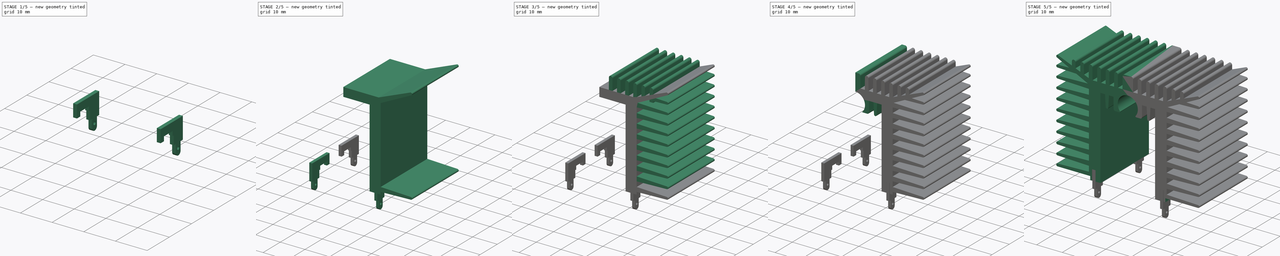
[diagram: build sequence overview — one tinted view per stage of 5, left to right]
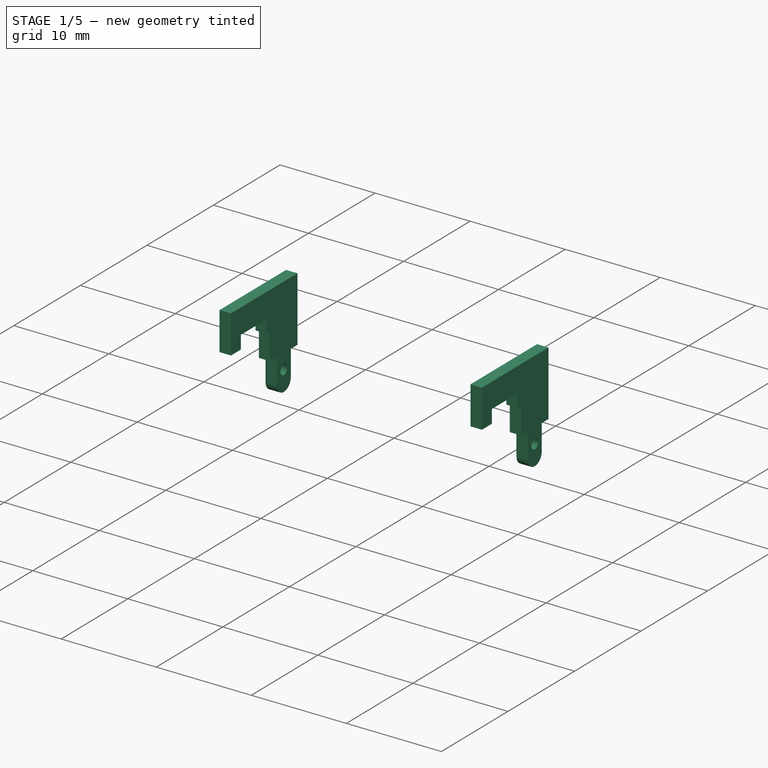
[diagram: stage 1 of 5 — iso view after this stage's code; geometry added in this stage tinted green]
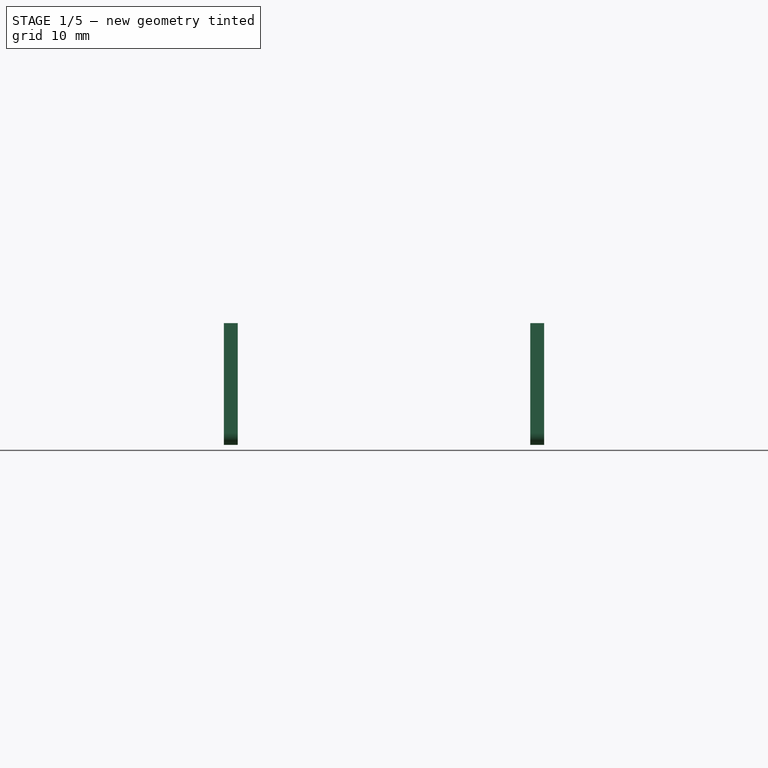
[diagram: stage 1 of 5 — front view after this stage's code; geometry added in this stage tinted green]
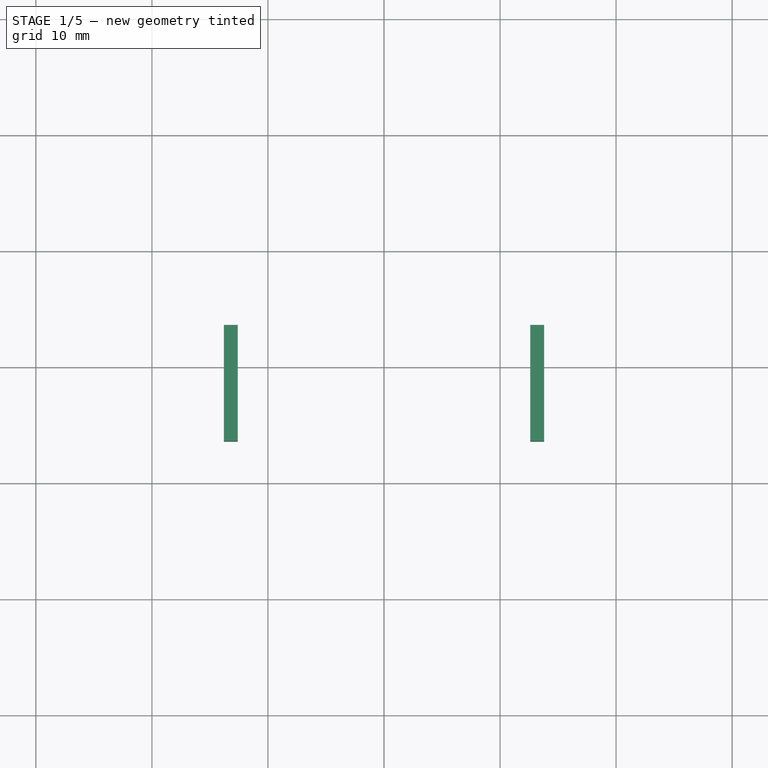
[diagram: stage 1 of 5 — top view after this stage's code; geometry added in this stage tinted green]
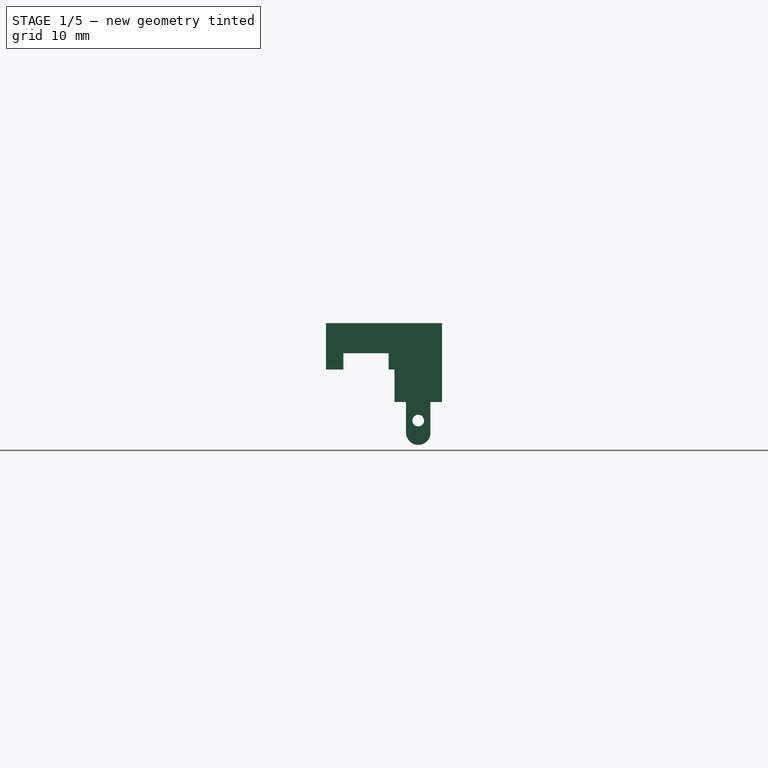
[diagram: stage 1 of 5 — right view after this stage's code; geometry added in this stage tinted green]
FCSTD DOCUMENT  (FreeCAD 1.0R38641 +468 (Git))
Label: MA-301-27E
License: All rights reserved
LicenseURL: http://en.wikipedia.org/wiki/All_rights_reserved
objects: Sketcher::SketchObject×12, PartDesign::Pad×6, PartDesign::Pocket×5, PartDesign::LinearPattern×2, PartDesign::Fillet×2, PartDesign::Body×2, Part::Mirroring×2, Part::FeaturePython×1, Part::MultiFuse×1, Part::Compound×1
note: 74 computed .brp shape members not serialized (recipe doc carries the construction recipe); baked Part::Feature solids carry a one-line shape summary decoded from their .brp

FEATURE [Sketcher::SketchObject] Sketch009
  ArcFitTolerance = 0
  AttachmentSupport = -> [YZ_Plane001]
  FullyConstrained = true
  MakeInternals = false
  MapMode = 5
  Placement = pos=(0,0,0) rot=(0.57735,0.57735,0.57735;2.0944rad)
  sketch-geometry (18):
    g0: LineSegment StartX=-1.05 StartY=-2.65 StartZ=0 EndX=-1.05 EndY=0 EndZ=0
    g1: LineSegment StartX=-1.05 StartY=0 StartZ=0 EndX=-2.05 EndY=0 EndZ=0
    g2: LineSegment StartX=-2.05 StartY=0 StartZ=0 EndX=-2.05 EndY=6.8 EndZ=0
    g3: LineSegment StartX=-2.05 StartY=6.8 StartZ=0 EndX=7.95 EndY=6.8 EndZ=0
    g4: LineSegment StartX=7.95 StartY=6.8 StartZ=0 EndX=7.95 EndY=2.8 EndZ=0
    g5: LineSegment StartX=6.45 StartY=4.2 StartZ=0 EndX=2.55 EndY=4.2 EndZ=0
    g6: LineSegment StartX=2.05 StartY=2.8 StartZ=0 EndX=2.05 EndY=0 EndZ=0
    g7: LineSegment StartX=2.05 StartY=0 StartZ=0 EndX=1.05 EndY=0 EndZ=0
    g8: LineSegment StartX=1.05 StartY=0 StartZ=0 EndX=1.05 EndY=-2.65 EndZ=0
    g9: LineSegment [constr] StartX=1.05 StartY=-2.65 StartZ=0 EndX=-1.05 EndY=-2.65 EndZ=0
    g10: LineSegment StartX=6.45 StartY=4.2 StartZ=0 EndX=6.45 EndY=2.8 EndZ=0
    g11: LineSegment StartX=6.45 StartY=2.8 StartZ=0 EndX=7.95 EndY=2.8 EndZ=0
    g12: LineSegment StartX=2.05 StartY=2.8 StartZ=0 EndX=2.55 EndY=2.8 EndZ=0
    g13: LineSegment StartX=2.55 StartY=2.8 StartZ=0 EndX=2.55 EndY=4.2 EndZ=0
    g14: ArcOfCircle CenterX=0 CenterY=-2.65 CenterZ=0 NormalX=0 NormalY=0 NormalZ=1 AngleXU=0 Radius=1.05 StartAngle=3.14159 EndAngle=6.28319
    g15: LineSegment [constr] StartX=-2.05 StartY=0 StartZ=0 EndX=-2.05 EndY=-3.7 EndZ=0
    g16: LineSegment [constr] StartX=-2.05 StartY=-3.7 StartZ=0 EndX=0 EndY=-3.7 EndZ=0
    g17: LineSegment [constr] StartX=2.55 StartY=2.8 StartZ=0 EndX=6.45 EndY=2.8 EndZ=0
  constraints (48):
    c: PointOnObject(g0,g-1)
    c: Vertical(g0)
    c: Coincident(g0,g1)
    c: Coincident(g1,g2)
    c: Vertical(g2)
    c: Coincident(g2,g3)
    c: Horizontal(g3)
    c: Coincident(g3,g4)
    c: Vertical(g4)
    c: Horizontal(g5)
    c: Coincident(g6,g7)
    c: Horizontal(g7)
    c: Coincident(g7,g8)
    c: Coincident(g8,g9)
    c: Coincident(g9,g0)
    c: Coincident(g10,g11)
    c: Coincident(g10,g5)
    c: Coincident(g11,g4)
    c: Vertical(g6)
    c: Horizontal(g11)
    c: Vertical(g10)
    c: Coincident(g6,g12)
    c: Horizontal(g12)
    c: Coincident(g12,g13)
    c: Vertical(g13)
    c: Coincident(g5,g13)
    c: PointOnObject(g7,g-1)
    c: Symmetric(g0,g8,g-2)
    c: DistanceX(g9,g9) = 2.1
    c: Coincident(g15,g1)
    c: Vertical(g15)
    c: Horizontal(g16)
    c: DistanceY(g15,g15) = 3.7
    c: Coincident(g15,g16)
    c: DistanceX(g15,g6) = 4.1
    c: Symmetric(g1,g6,g-2)
    c: DistanceY(g6,g6) = 2.8
    c: DistanceY(g2,g2) = 6.8
    c: Coincident(g17,g12)
    c: Coincident(g17,g10)
    c: Horizontal(g17)
    c: DistanceX(g3,g3) = 10
    c: DistanceX(g11,g11) = 1.5
    c: DistanceX(g12,g12) = 0.5
    c: DistanceY(g13,g13) = 1.4
    c: Tangent(g14,g0) = 1.5708
    c: Tangent(g14,g8) = 1.5708
    c: Tangent(g16,g14) = -1.5708
FEATURE [PartDesign::Pad] Pad005
  AllowMultiFace = false
  Direction = (1,0,0)
  Length = 0.6
  Length2 = 0.6
  Placement = pos=(0,0,0) rot=(0.57735,0.57735,0.57735;2.0944rad)
  Profile = -> Sketch009
  Suppressed = false
  Type = 4
FEATURE [Sketcher::SketchObject] Sketch010
  ArcFitTolerance = 0
  AttachmentSupport = -> [YZ_Plane001]
  ExternalGeometry = -> [Sketch009]
  FullyConstrained = true
  MakeInternals = false
  MapMode = 5
  Placement = pos=(0,0,0) rot=(0.57735,0.57735,0.57735;2.0944rad)
  sketch-geometry (2):
    g0: Circle CenterX=0 CenterY=-1.6 CenterZ=0 NormalX=0 NormalY=0 NormalZ=1 AngleXU=0 Radius=0.5
    g1: LineSegment [constr] StartX=0 StartY=-2.1 StartZ=0 EndX=0 EndY=-3.7 EndZ=0
  constraints (7):
    c: PointOnObject(g0,g-2)
    c: Diameter(g0) = 1
    c: PointOnObject(g1,g0)
    c: PointOnObject(g1,g-3)
    c: Vertical(g1)
    c: PointOnObject(g1,g-2)
    c: DistanceY(g1,g1) = 1.6
FEATURE [PartDesign::Pocket] Pocket003
  AllowMultiFace = false
  BaseFeature = -> Pad005
  Direction = (-1,0,0)
  Length = 5
  Length2 = 100
  Midplane = true
  Placement = pos=(0,0,0) rot=(0.57735,0.57735,0.57735;2.0944rad)
  Profile = -> Sketch010
  Suppressed = false
  Type = 1
FEATURE [PartDesign::Body] Body001
  AllowCompound = false
  Group = -> [Sketch009,Pad005,Sketch010,Pocket003]
  Origin = -> Origin001
  Tip = -> Pocket003
FEATURE [Part::FeaturePython] Array  # Draft array (typed FeaturePython)
  Angle = 360
  ArrayType = 0
  Axis = (0,0,1)
  Base = -> Body001
  Center = (0,0,0)
  Count = 2
  Fuse = false
  IntervalAxis = (0,0,0)
  IntervalX = (26.4,0,0)
  IntervalY = (0,1,0)
  IntervalZ = (0,0,1)
  NumberPolar = 1
  NumberX = 2
  NumberY = 1
  NumberZ = 1
  Placement = pos=(-13.2,-11.45,0) rot=(0,0,1;0rad)
FEATURE [Part::Mirroring] Part__Mirroring001  label="Array (Mirror #2)"
  Base = (0,0,0)
  Normal = (0,1,0)
  Source = -> Array
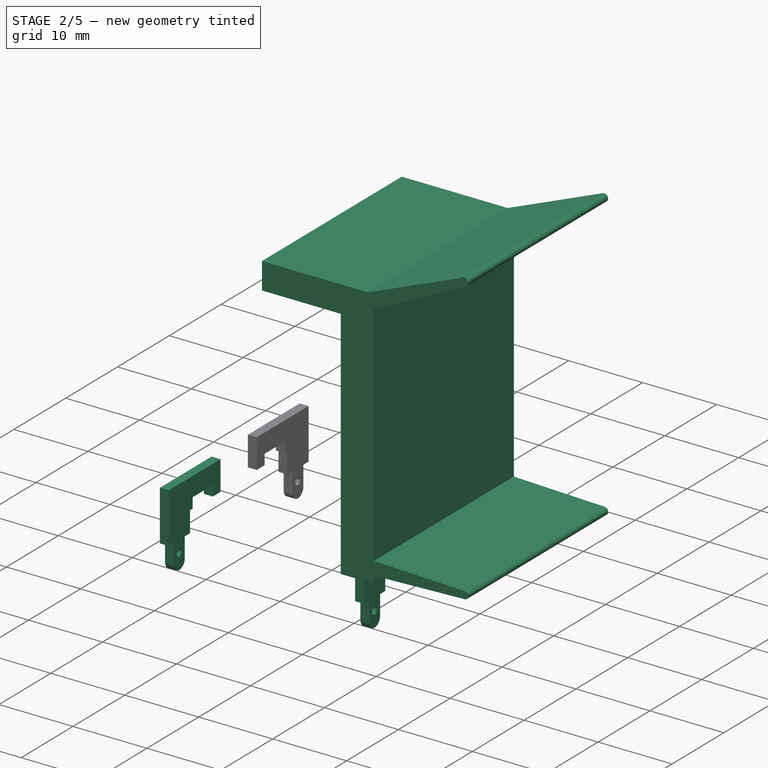
[diagram: stage 2 of 5 — iso view after this stage's code; geometry added in this stage tinted green]
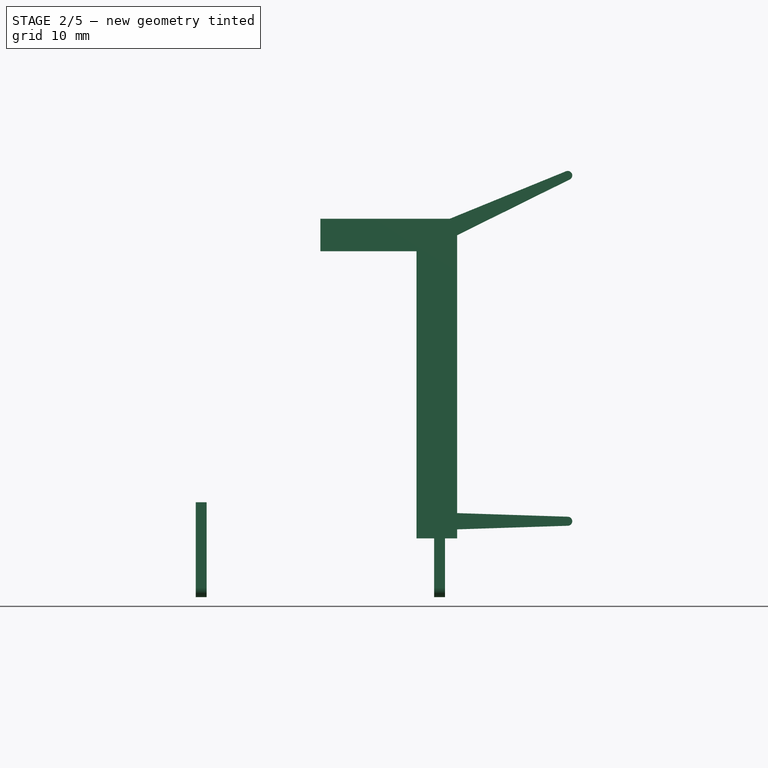
[diagram: stage 2 of 5 — front view after this stage's code; geometry added in this stage tinted green]
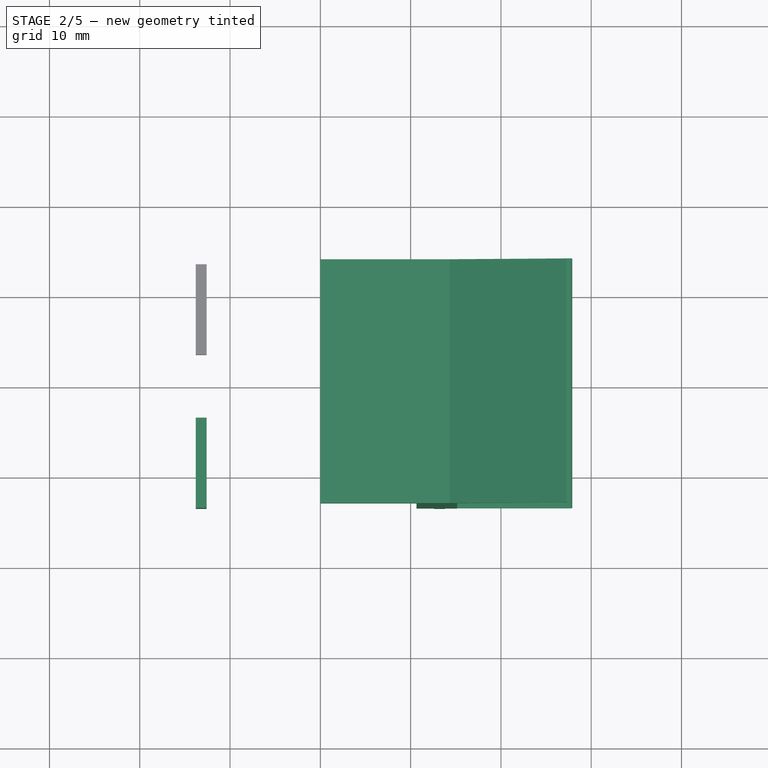
[diagram: stage 2 of 5 — top view after this stage's code; geometry added in this stage tinted green]
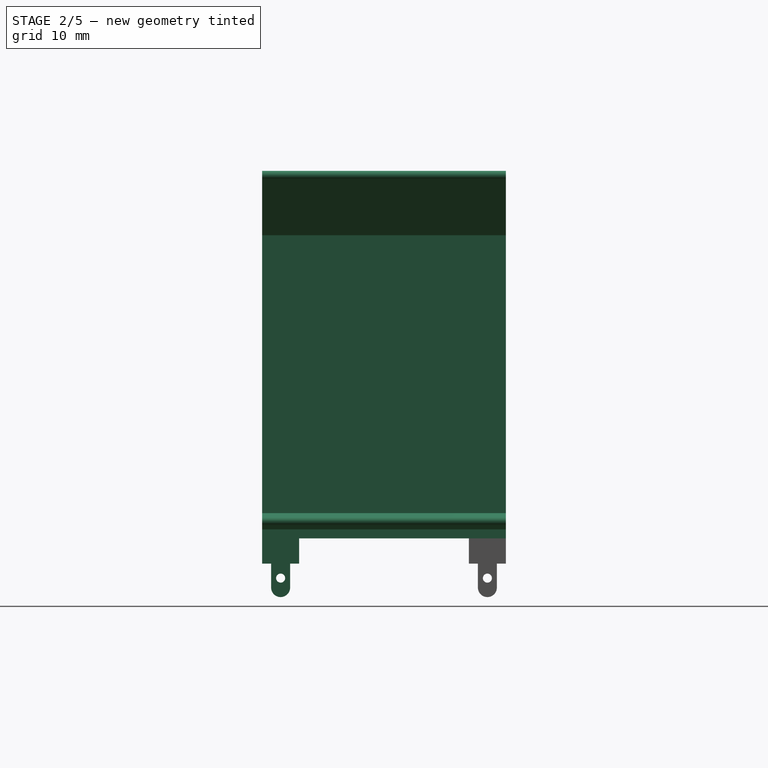
[diagram: stage 2 of 5 — right view after this stage's code; geometry added in this stage tinted green]
FEATURE [Sketcher::SketchObject] Sketch  label="master"
  ArcFitTolerance = 0
  AttachmentSupport = -> [XZ_Plane]
  FullyConstrained = false
  MakeInternals = false
  MapMode = 5
  Placement = pos=(0,0,0) rot=(1,0,0;1.5708rad)
  expr: .Constraints.dim_x_2 = 55.8 / 2
  expr: Constraints[22] = 21.3 / 2
  expr: Constraints[26] = .Constraints.dim_z - 5.3 mm
  sketch-geometry (9):
    g0: LineSegment StartX=0 StartY=38.2 StartZ=0 EndX=15.15 EndY=38.2 EndZ=0
    g1: LineSegment StartX=15.15 StartY=38.2 StartZ=0 EndX=15.15 EndY=2.8 EndZ=0
    g2: LineSegment StartX=15.15 StartY=2.8 StartZ=0 EndX=10.65 EndY=2.8 EndZ=0
    g3: LineSegment StartX=10.65 StartY=2.8 StartZ=0 EndX=10.65 EndY=34.6 EndZ=0
    g4: LineSegment StartX=10.65 StartY=34.6 StartZ=0 EndX=0 EndY=34.6 EndZ=0
    g5: LineSegment StartX=0 StartY=34.6 StartZ=0 EndX=0 EndY=38.2 EndZ=0
    g6: LineSegment StartX=42.0297 StartY=31.8913 StartZ=0 EndX=42.0297 EndY=18.3913 EndZ=0
    g7: LineSegment StartX=0 StartY=43.5 StartZ=0 EndX=27.9 EndY=43.5 EndZ=0
    g8: LineSegment StartX=27.9 StartY=43.5 StartZ=0 EndX=27.9 EndY=0 EndZ=0
  constraints (27):
    c: PointOnObject(g0,g-2)
    c: Horizontal(g0)
    c: Coincident(g0,g1)
    c: Vertical(g1)
    c: Coincident(g1,g2)
    c: Horizontal(g2)
    c: Coincident(g2,g3)
    c: Vertical(g3)
    c: Coincident(g3,g4)
    c: Horizontal(g4)
    c: Coincident(g4,g5)
    c: Vertical(g5)
    c: Coincident(g0,g5)
    c: Vertical(g6)
    c: DistanceY(g6,g6) = 13.5  'dim_y_2'
    c: PointOnObject(g7,g-2)
    c: Horizontal(g7)
    c: Coincident(g8,g7)
    c: PointOnObject(g8,g-1)
    c: Vertical(g8)
    c: DistanceY(g8,g8) = 43.5  'dim_z'
    c: DistanceX(g7,g7) = 27.9  'dim_x_2'
    c: DistanceX(g-1,g2) = 10.65
    c: DistanceX(g2,g2) = 4.5
    c: DistanceY(g5,g5) = 3.6
    c: DistanceY(g-1,g2) = 2.8
    c: DistanceY(g-1,g0) = 38.2
FEATURE [Sketcher::SketchObject] Sketch001
  ArcFitTolerance = 0
  AttachmentSupport = -> [XZ_Plane]
  FullyConstrained = true
  MakeInternals = false
  MapMode = 5
  Placement = pos=(0,0,0) rot=(1,0,0;1.5708rad)
  expr: Constraints[13] = Sketch.Constraints[22]
  expr: Constraints[14] = Sketch.Constraints[23]
  expr: Constraints[15] = Sketch.Constraints[24]
  expr: Constraints[16] = Sketch.Constraints[25]
  expr: Constraints[17] = Sketch.Constraints[26]
  sketch-geometry (6):
    g0: LineSegment StartX=0 StartY=38.2 StartZ=0 EndX=15.15 EndY=38.2 EndZ=0
    g1: LineSegment StartX=15.15 StartY=38.2 StartZ=0 EndX=15.15 EndY=2.8 EndZ=0
    g2: LineSegment StartX=15.15 StartY=2.8 StartZ=0 EndX=10.65 EndY=2.8 EndZ=0
    g3: LineSegment StartX=10.65 StartY=2.8 StartZ=0 EndX=10.65 EndY=34.6 EndZ=0
    g4: LineSegment StartX=10.65 StartY=34.6 StartZ=0 EndX=0 EndY=34.6 EndZ=0
    g5: LineSegment StartX=0 StartY=34.6 StartZ=0 EndX=0 EndY=38.2 EndZ=0
  constraints (18):
    c: PointOnObject(g0,g-2)
    c: Horizontal(g0)
    c: Coincident(g0,g1)
    c: Vertical(g1)
    c: Coincident(g1,g2)
    c: Horizontal(g2)
    c: Coincident(g2,g3)
    c: Vertical(g3)
    c: Coincident(g3,g4)
    c: Horizontal(g4)
    c: Coincident(g4,g5)
    c: Vertical(g5)
    c: Coincident(g0,g5)
    c: DistanceX(g-1,g2) = 10.65
    c: DistanceX(g2,g2) = 4.5
    c: DistanceY(g5,g5) = 3.6
    c: DistanceY(g-1,g2) = 2.8
    c: DistanceY(g-1,g0) = 38.2
FEATURE [PartDesign::Pad] Pad
  AllowMultiFace = false
  Direction = (0,-1,2e-16)
  Length = 13.5
  Length2 = 13.5
  Placement = pos=(0,0,0) rot=(1,0,0;1.5708rad)
  Profile = -> Sketch001
  Suppressed = false
  Type = 4
  expr: Length = <<master>>.Constraints.dim_y_2
  expr: Length2 = <<master>>.Constraints.dim_y_2
FEATURE [Sketcher::SketchObject] Sketch002
  ArcFitTolerance = 0
  AttachmentSupport = -> [XZ_Plane]
  ExternalGeometry = -> [Sketch]
  FullyConstrained = true
  MakeInternals = false
  MapMode = 5
  Placement = pos=(0,0,0) rot=(1,0,0;1.5708rad)
  expr: Constraints[5] = <<master>>.Constraints.dim_x_2
  expr: Constraints[6] = <<master>>.Constraints.dim_z
  sketch-geometry (10):
    g0: LineSegment [constr] StartX=0 StartY=43.5 StartZ=0 EndX=27.9 EndY=43.5 EndZ=0
    g1: LineSegment [constr] StartX=27.9 StartY=43.5 StartZ=0 EndX=27.9 EndY=0 EndZ=0
    g2: LineSegment StartX=14.3276 StartY=38.2 StartZ=0 EndX=27.2109 EndY=43.4629 EndZ=0
    g3: LineSegment StartX=27.6219 StartY=42.5519 StartZ=0 EndX=15.15 EndY=36.3769 EndZ=0
    g4: ArcOfCircle CenterX=27.4 CenterY=43 CenterZ=0 NormalX=0 NormalY=0 NormalZ=1 AngleXU=0 Radius=0.5 StartAngle=5.17212 EndAngle=8.2418
    g5: LineSegment [constr] StartX=14.3276 StartY=38.2 StartZ=0 EndX=27.4 EndY=43 EndZ=0
    g6: LineSegment [constr] StartX=27.4 StartY=43 StartZ=0 EndX=15.15 EndY=36.3769 EndZ=0
    g7: LineSegment StartX=15.15 StartY=36.3769 StartZ=0 EndX=15.15 EndY=38.2 EndZ=0
    g8: LineSegment StartX=14.3276 StartY=38.2 StartZ=0 EndX=15.15 EndY=38.2 EndZ=0
    g9: LineSegment [constr] StartX=14.3276 StartY=38.2 StartZ=0 EndX=15.15 EndY=36.3769 EndZ=0
  constraints (26):
    c: PointOnObject(g0,g-2)
    c: Horizontal(g0)
    c: Coincident(g1,g0)
    c: PointOnObject(g1,g-1)
    c: Vertical(g1)
    c: DistanceX(g0,g0) = 27.9
    c: DistanceY(g1,g1) = 43.5
    c: PointOnObject(g3,g-3)
    c: Coincident(g5,g2)
    c: Coincident(g5,g4)
    c: Coincident(g6,g4)
    c: Coincident(g6,g3)
    c: Tangent(g4,g2) = 1.5708
    c: Equal(g5,g6)
    c: Tangent(g4,g1)
    c: Tangent(g4,g3) = 1.5708
    c: Coincident(g7,g3)
    c: Coincident(g7,g-4)
    c: PointOnObject(g8,g-4)
    c: Coincident(g8,g7)
    c: Coincident(g2,g8)
    c: Radius(g4) = 0.5
    c: Coincident(g9,g2)
    c: Coincident(g9,g3)
    c: Distance(g9) = 2
    c: Tangent(g0,g4)
FEATURE [PartDesign::Pad] Pad001
  AllowMultiFace = false
  BaseFeature = -> Pad
  Direction = (0,-1,2e-16)
  Length = 13.5
  Length2 = 13.5
  Placement = pos=(0,0,0) rot=(1,0,0;1.5708rad)
  Profile = -> Sketch002
  Suppressed = false
  Type = 4
  expr: Length = <<master>>.Constraints.dim_y_2
  expr: Length2 = <<master>>.Constraints.dim_y_2
FEATURE [Sketcher::SketchObject] Sketch003
  ArcFitTolerance = 0
  AttachmentSupport = -> [XZ_Plane]
  ExternalGeometry = -> [Sketch]
  FullyConstrained = true
  MakeInternals = false
  MapMode = 5
  Placement = pos=(0,0,0) rot=(1,0,0;1.5708rad)
  expr: Constraints[2] = <<master>>.Constraints.dim_z
  expr: Constraints[3] = <<master>>.Constraints.dim_x_2
  sketch-geometry (7):
    g0: LineSegment [constr] StartX=27.9 StartY=43.5 StartZ=0 EndX=27.9 EndY=0 EndZ=0
    g1: LineSegment StartX=27.4163 StartY=5.19973 StartZ=0 EndX=15.15 EndY=5.6 EndZ=0
    g2: LineSegment StartX=15.15 StartY=5.6 StartZ=0 EndX=15.15 EndY=3.8 EndZ=0
    g3: LineSegment StartX=15.15 StartY=3.8 StartZ=0 EndX=27.4163 EndY=4.20027 EndZ=0
    g4: ArcOfCircle CenterX=27.4 CenterY=4.7 CenterZ=0 NormalX=0 NormalY=0 NormalZ=1 AngleXU=0 Radius=0.5 StartAngle=4.74501 EndAngle=7.82136
    g5: LineSegment [constr] StartX=15.15 StartY=5.6 StartZ=0 EndX=27.4 EndY=4.7 EndZ=0
    g6: LineSegment [constr] StartX=27.4 StartY=4.7 StartZ=0 EndX=15.15 EndY=3.8 EndZ=0
  constraints (19):
    c: PointOnObject(g0,g-1)
    c: Vertical(g0)
    c: DistanceY(g0,g0) = 43.5
    c: DistanceX(g-1,g0) = 27.9
    c: PointOnObject(g1,g-3)
    c: Coincident(g1,g2)
    c: Vertical(g2)
    c: Coincident(g2,g3)
    c: Radius(g4) = 0.5
    c: DistanceY(g2,g2) = 1.8
    c: Coincident(g5,g1)
    c: Coincident(g5,g4)
    c: Coincident(g6,g4)
    c: Coincident(g6,g2)
    c: Equal(g6,g5)
    c: Tangent(g4,g1) = -1.5708
    c: Tangent(g4,g3) = -1.5708
    c: Tangent(g4,g0)
    c: DistanceY(g-3,g2) = 1
FEATURE [PartDesign::Pad] Pad002
  AllowMultiFace = false
  BaseFeature = -> Pad001
  Direction = (0,-1,2e-16)
  Length = 13.5
  Length2 = 13.5
  Placement = pos=(0,0,0) rot=(1,0,0;1.5708rad)
  Profile = -> Sketch003
  Suppressed = false
  Type = 4
  expr: Length = <<master>>.Constraints.dim_y_2
  expr: Length2 = <<master>>.Constraints.dim_y_2
FEATURE [Part::Compound] Compound
  Links = -> [Array,Part__Mirroring001]
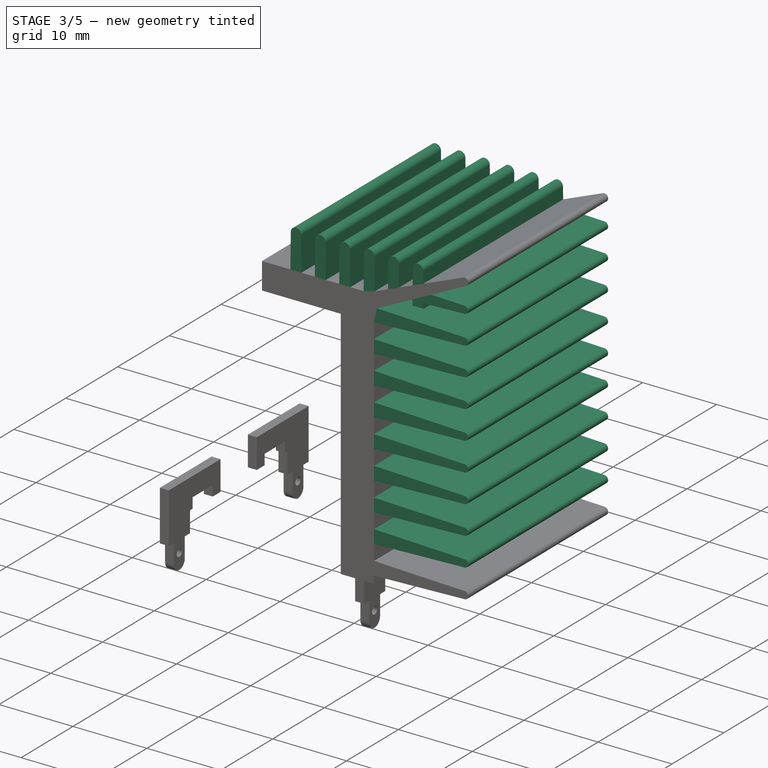
[diagram: stage 3 of 5 — iso view after this stage's code; geometry added in this stage tinted green]
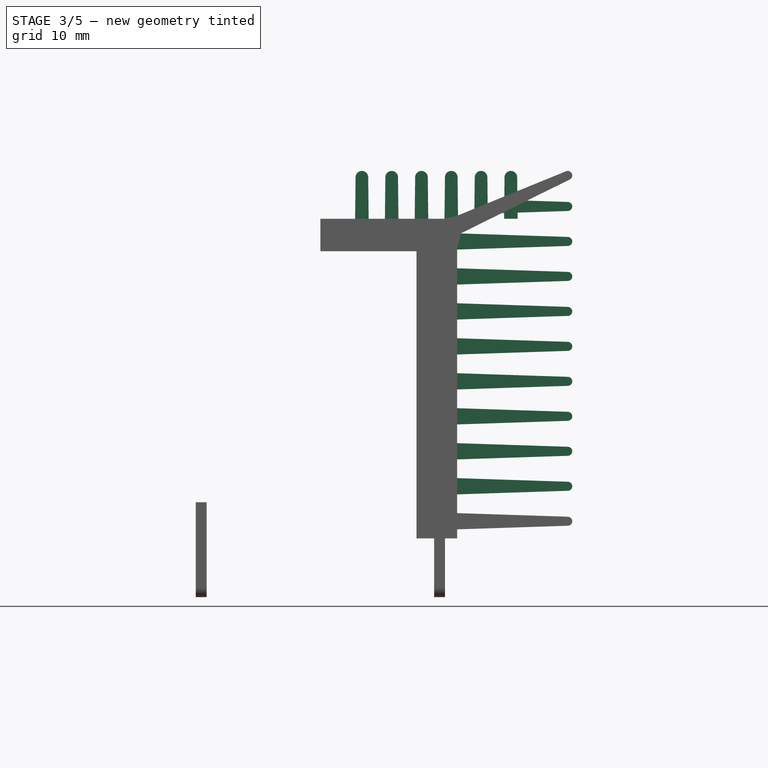
[diagram: stage 3 of 5 — front view after this stage's code; geometry added in this stage tinted green]
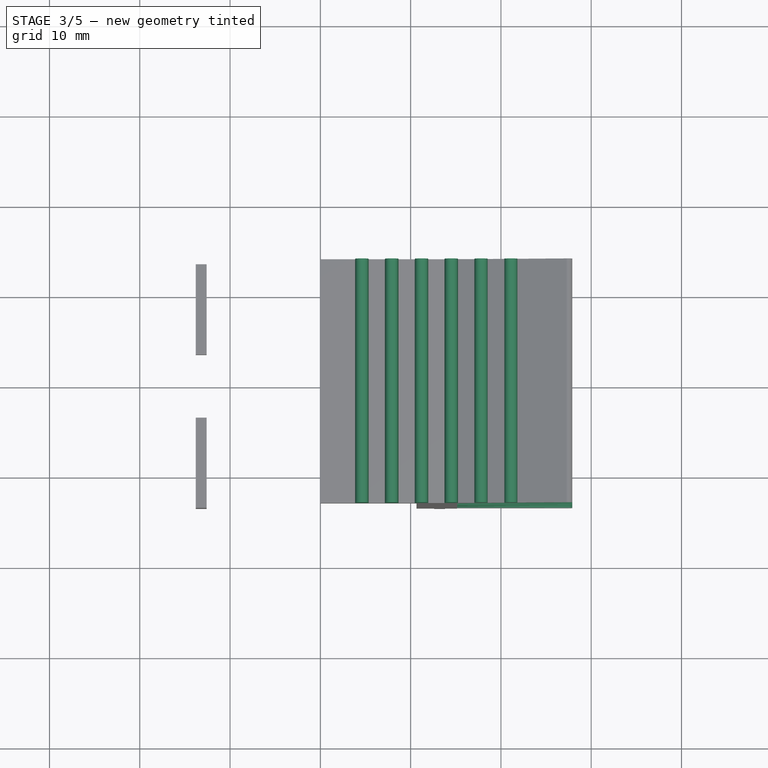
[diagram: stage 3 of 5 — top view after this stage's code; geometry added in this stage tinted green]
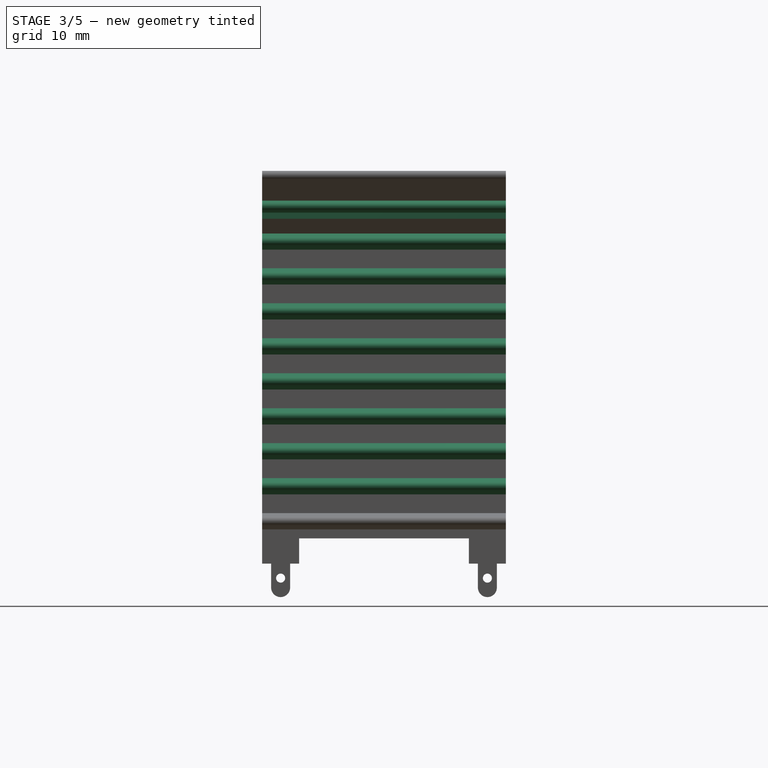
[diagram: stage 3 of 5 — right view after this stage's code; geometry added in this stage tinted green]
FEATURE [PartDesign::LinearPattern] LinearPattern
  BaseFeature = -> Pad002
  Direction = -> Sketch003 [V_Axis]
  Length = 34.863
  Mode = 0
  Occurrences = 10
  Offset = 3.87367
  Originals = -> [Pad002]
  Placement = pos=(0,0,0) rot=(1,0,0;1.5708rad)
  Suppressed = false
  TransformMode = 0
FEATURE [Sketcher::SketchObject] Sketch004
  ArcFitTolerance = 0
  AttachmentSupport = -> [XZ_Plane]
  ExternalGeometry = -> [Sketch002]
  FullyConstrained = true
  MakeInternals = false
  MapMode = 5
  Placement = pos=(0,0,0) rot=(1,0,0;1.5708rad)
  expr: Constraints[4] = <<master>>.Constraints.dim_z
  sketch-geometry (3):
    g0: LineSegment StartX=27.3018 StartY=43.5 StartZ=0 EndX=14.3276 EndY=43.5 EndZ=0
    g1: LineSegment StartX=14.3276 StartY=43.5 StartZ=0 EndX=14.3276 EndY=38.2 EndZ=0
    g2: LineSegment StartX=14.3276 StartY=38.2 StartZ=0 EndX=27.3018 EndY=43.5 EndZ=0
  constraints (8):
    c: Horizontal(g0)
    c: Coincident(g0,g1)
    c: Vertical(g1)
    c: Coincident(g2,g1)
    c: DistanceY(g-1,g0) = 43.5
    c: Coincident(g0,g2)
    c: Coincident(g-3,g1)
    c: PointOnObject(g-3,g2)
FEATURE [PartDesign::Pocket] Pocket
  AllowMultiFace = false
  BaseFeature = -> LinearPattern
  Direction = (0,1,-2e-16)
  Length = 5
  Length2 = 100
  Midplane = true
  Placement = pos=(0,0,0) rot=(1,0,0;1.5708rad)
  Profile = -> Sketch004
  Suppressed = false
  Type = 1
FEATURE [Sketcher::SketchObject] Sketch005
  ArcFitTolerance = 0
  AttachmentSupport = -> [XZ_Plane]
  ExternalGeometry = -> [Sketch]
  FullyConstrained = true
  MakeInternals = false
  MapMode = 5
  Placement = pos=(0,0,0) rot=(1,0,0;1.5708rad)
  expr: Constraints[2] = <<master>>.Constraints.dim_z
  expr: Constraints[3] = <<master>>.Constraints.dim_x_2
  sketch-geometry (7):
    g0: LineSegment [constr] StartX=0 StartY=43.5 StartZ=0 EndX=27.9 EndY=43.5 EndZ=0
    g1: LineSegment StartX=3.90004 StartY=42.8076 StartZ=0 EndX=3.85 EndY=38.2 EndZ=0
    g2: LineSegment StartX=3.85 StartY=38.2 StartZ=0 EndX=5.35 EndY=38.2 EndZ=0
    g3: LineSegment StartX=5.35 StartY=38.2 StartZ=0 EndX=5.29996 EndY=42.8076 EndZ=0
    g4: ArcOfCircle CenterX=4.6 CenterY=42.8 CenterZ=0 NormalX=0 NormalY=0 NormalZ=1 AngleXU=0 Radius=0.7 StartAngle=0.0108602 EndAngle=3.13073
    g5: LineSegment [constr] StartX=4.6 StartY=42.8 StartZ=0 EndX=3.85 EndY=38.2 EndZ=0
    g6: LineSegment [constr] StartX=5.35 StartY=38.2 StartZ=0 EndX=4.6 EndY=42.8 EndZ=0
  constraints (19):
    c: PointOnObject(g0,g-2)
    c: Horizontal(g0)
    c: DistanceY(g-1,g0) = 43.5
    c: DistanceX(g0,g0) = 27.9
    c: PointOnObject(g1,g-3)
    c: Coincident(g1,g2)
    c: PointOnObject(g2,g-3)
    c: Coincident(g2,g3)
    c: DistanceX(g2,g2) = 1.5
    c: Coincident(g5,g4)
    c: Coincident(g5,g1)
    c: Coincident(g6,g2)
    c: Coincident(g6,g4)
    c: Equal(g6,g5)
    c: Tangent(g4,g3) = -1.5708
    c: Tangent(g4,g1) = -1.5708
    c: Radius(g4) = 0.7
    c: Tangent(g4,g0)
    c: DistanceX(g-3,g1) = 3.85
FEATURE [PartDesign::Pad] Pad003
  AllowMultiFace = false
  BaseFeature = -> Pocket
  Direction = (0,-1,2e-16)
  Length = 13.5
  Length2 = 13.5
  Placement = pos=(0,0,0) rot=(1,0,0;1.5708rad)
  Profile = -> Sketch005
  Suppressed = false
  Type = 4
  expr: Length = <<master>>.Constraints.dim_y_2
  expr: Length2 = <<master>>.Constraints.dim_y_2
FEATURE [PartDesign::LinearPattern] LinearPattern001
  BaseFeature = -> Pad003
  Direction = -> Sketch005 [H_Axis]
  Length = 16.5
  Mode = 0
  Occurrences = 6
  Offset = 3.3
  Originals = -> [Pad003]
  Placement = pos=(0,0,0) rot=(1,0,0;1.5708rad)
  Suppressed = false
  TransformMode = 0
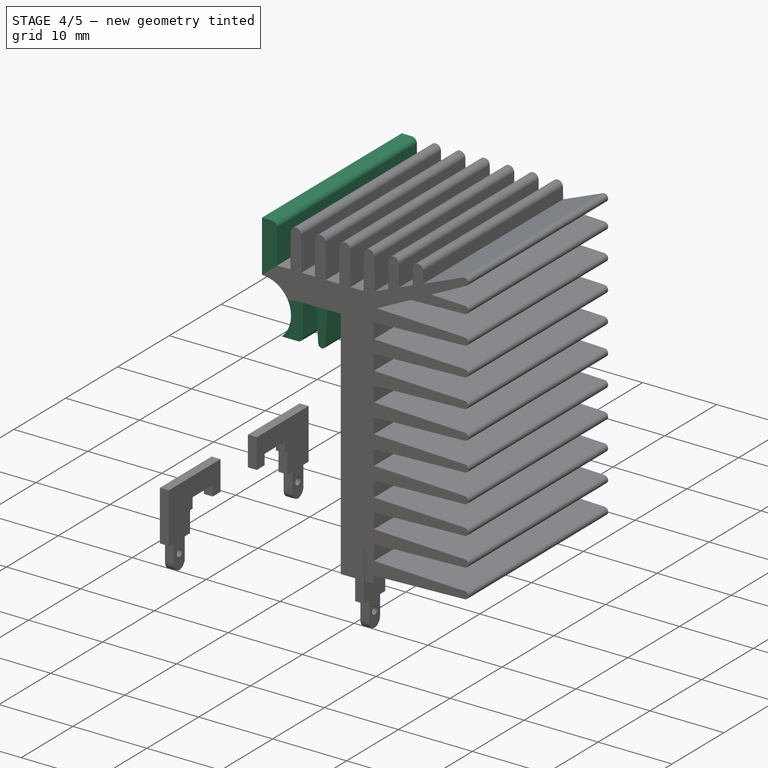
[diagram: stage 4 of 5 — iso view after this stage's code; geometry added in this stage tinted green]
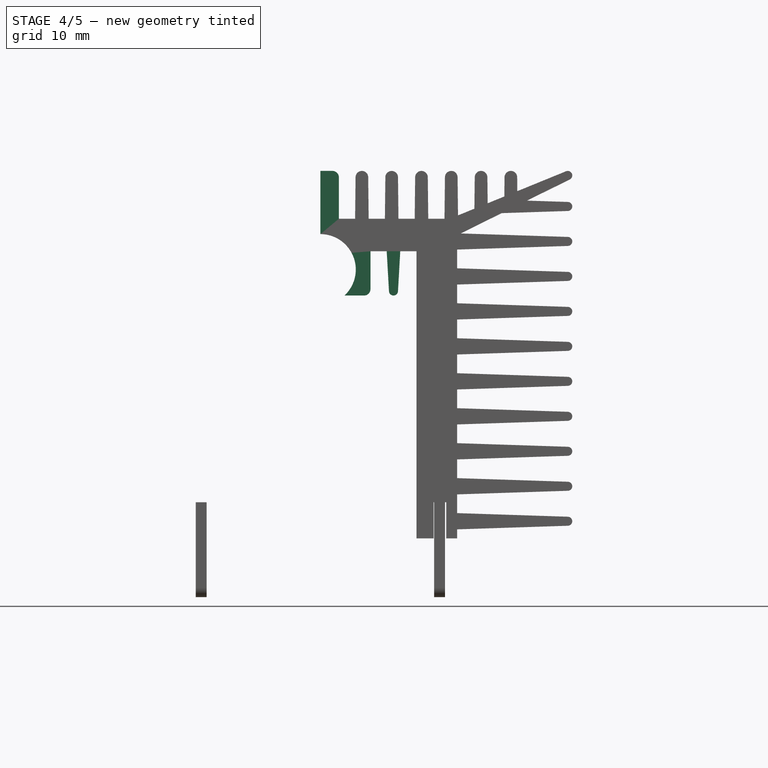
[diagram: stage 4 of 5 — front view after this stage's code; geometry added in this stage tinted green]
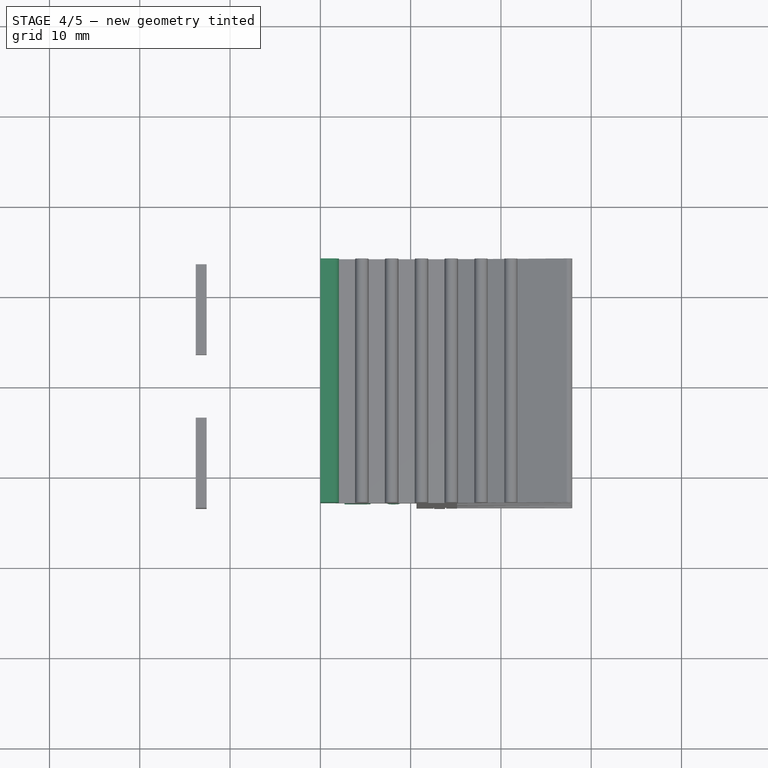
[diagram: stage 4 of 5 — top view after this stage's code; geometry added in this stage tinted green]
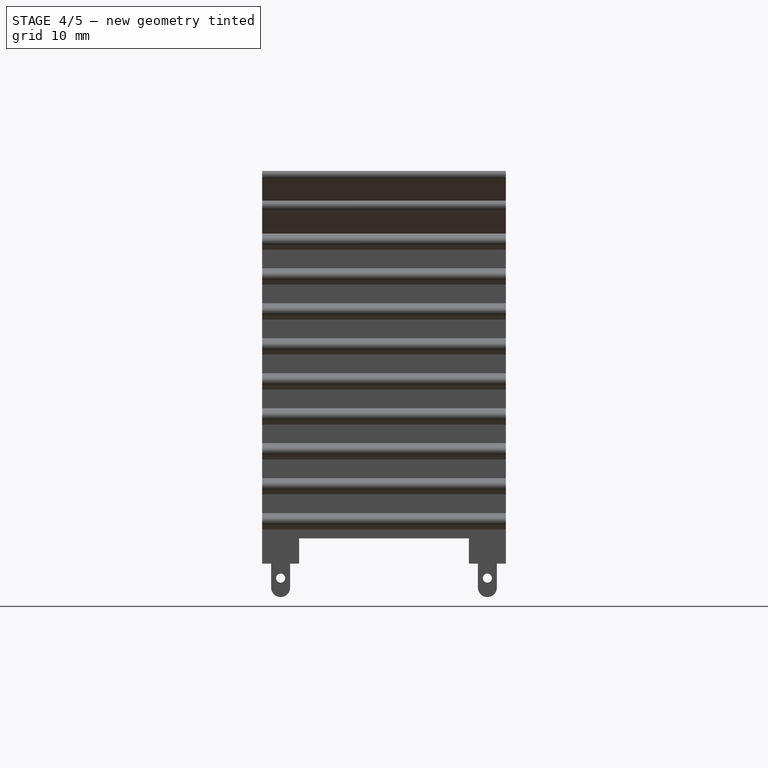
[diagram: stage 4 of 5 — right view after this stage's code; geometry added in this stage tinted green]
FEATURE [Sketcher::SketchObject] Sketch006
  ArcFitTolerance = 0
  AttachmentSupport = -> [XZ_Plane]
  ExternalGeometry = -> [LinearPattern001]
  FullyConstrained = true
  MakeInternals = false
  MapMode = 5
  Placement = pos=(0,0,0) rot=(1,0,0;1.5708rad)
  expr: Constraints[2] = <<master>>.Constraints.dim_z
  expr: Constraints[3] = <<master>>.Constraints.dim_x_2
  sketch-geometry (6):
    g0: LineSegment [constr] StartX=27.9 StartY=43.5 StartZ=0 EndX=27.9 EndY=0 EndZ=0
    g1: LineSegment StartX=15.5525 StartY=36.5762 StartZ=0 EndX=27.9 EndY=36.5762 EndZ=0
    g2: LineSegment StartX=27.9 StartY=36.5762 StartZ=0 EndX=27.9 EndY=39.0633 EndZ=0
    g3: LineSegment StartX=27.4163 StartY=39.0633 StartZ=0 EndX=20.0931 EndY=38.8243 EndZ=0
    g4: LineSegment StartX=20.0931 StartY=38.8243 StartZ=0 EndX=15.5525 EndY=36.5762 EndZ=0
    g5: LineSegment StartX=27.9 StartY=39.0633 StartZ=0 EndX=27.4163 EndY=39.0633 EndZ=0
  constraints (16):
    c: PointOnObject(g0,g-1)
    c: Vertical(g0)
    c: DistanceY(g0,g0) = 43.5
    c: DistanceX(g-1,g0) = 27.9
    c: Coincident(g1,g-5)
    c: PointOnObject(g1,g0)
    c: Horizontal(g1)
    c: Coincident(g1,g2)
    c: PointOnObject(g2,g0)
    c: Coincident(g3,g-4)
    c: Coincident(g3,g4)
    c: Coincident(g4,g1)
    c: Coincident(g5,g2)
    c: Coincident(g5,g3)
    c: Horizontal(g5)
    c: Coincident(g3,g-3)
FEATURE [PartDesign::Pocket] Pocket001
  AllowMultiFace = false
  BaseFeature = -> LinearPattern001
  Direction = (0,1,-2e-16)
  Length = 5
  Length2 = 100
  Midplane = true
  Placement = pos=(0,0,0) rot=(1,0,0;1.5708rad)
  Profile = -> Sketch006
  Suppressed = false
  Type = 1
FEATURE [Sketcher::SketchObject] Sketch007
  ArcFitTolerance = 0
  AttachmentSupport = -> [XZ_Plane]
  ExternalGeometry = -> [Sketch]
  FullyConstrained = true
  MakeInternals = false
  MapMode = 5
  Placement = pos=(0,0,0) rot=(1,0,0;1.5708rad)
  expr: Constraints[2] = <<master>>.Constraints.dim_z
  expr: Constraints[3] = <<master>>.Constraints.dim_x_2
  sketch-geometry (19):
    g0: LineSegment [constr] StartX=0 StartY=43.5 StartZ=0 EndX=27.9 EndY=43.5 EndZ=0
    g1: LineSegment StartX=0 StartY=38.2 StartZ=0 EndX=2.05 EndY=38.2 EndZ=0
    g2: LineSegment StartX=2.05 StartY=38.2 StartZ=0 EndX=2.05 EndY=43.5 EndZ=0
    g3: LineSegment StartX=2.05 StartY=43.5 StartZ=0 EndX=0 EndY=43.5 EndZ=0
    g4: LineSegment StartX=0 StartY=43.5 StartZ=0 EndX=0 EndY=38.2 EndZ=0
    g5: LineSegment StartX=0 StartY=34.6 StartZ=0 EndX=5.55 EndY=34.6 EndZ=0
    g6: LineSegment StartX=5.55 StartY=34.6 StartZ=0 EndX=5.55 EndY=29.7 EndZ=0
    g7: LineSegment StartX=5.55 StartY=29.7 StartZ=0 EndX=0 EndY=29.7 EndZ=0
    g8: LineSegment StartX=0 StartY=29.7 StartZ=0 EndX=0 EndY=34.6 EndZ=0
    g9: LineSegment StartX=7.35 StartY=34.6 StartZ=0 EndX=7.6008 EndY=30.1717 EndZ=0
    g10: LineSegment StartX=8.5992 StartY=30.1717 StartZ=0 EndX=8.85 EndY=34.6 EndZ=0
    g11: LineSegment StartX=8.85 StartY=34.6 StartZ=0 EndX=7.35 EndY=34.6 EndZ=0
    g12: ArcOfCircle CenterX=8.1 CenterY=30.2 CenterZ=0 NormalX=0 NormalY=0 NormalZ=1 AngleXU=0 Radius=0.5 StartAngle=3.19817 EndAngle=6.22661
    g13: LineSegment [constr] StartX=7.35 StartY=34.6 StartZ=0 EndX=8.1 EndY=30.2 EndZ=0
    g14: LineSegment [constr] StartX=8.1 StartY=30.2 StartZ=0 EndX=8.85 EndY=34.6 EndZ=0
    g15: LineSegment [constr] StartX=5.55 StartY=29.7 StartZ=0 EndX=8.1 EndY=29.7 EndZ=0
    g16: LineSegment [constr] StartX=5.55 StartY=34.6 StartZ=0 EndX=7.35 EndY=34.6 EndZ=0
    g17: LineSegment [constr] StartX=8.85 StartY=34.6 StartZ=0 EndX=10.65 EndY=34.6 EndZ=0
    g18: LineSegment [constr] StartX=2.05 StartY=38.2 StartZ=0 EndX=15.15 EndY=38.2 EndZ=0
  constraints (52):
    c: PointOnObject(g0,g-2)
    c: Horizontal(g0)
    c: DistanceY(g-1,g0) = 43.5
    c: DistanceX(g0,g0) = 27.9
    c: Coincident(g1,g2)
    c: Coincident(g2,g3)
    c: Coincident(g3,g4)
    c: Coincident(g4,g1)
    c: Horizontal(g1)
    c: Horizontal(g3)
    c: Vertical(g2)
    c: Vertical(g4)
    c: DistanceX(g3,g3) = 2.05
    c: Coincident(g5,g6)
    c: Coincident(g6,g7)
    c: Coincident(g7,g8)
    c: Coincident(g8,g5)
    c: Horizontal(g5)
    c: Horizontal(g7)
    c: Vertical(g6)
    c: Vertical(g8)
    c: DistanceY(g7,g3) = 13.8
    c: DistanceX(g7,g7) = 5.55
    c: Coincident(g10,g11)
    c: Coincident(g11,g9)
    c: Tangent(g12,g9) = -1.5708
    c: Coincident(g13,g9)
    c: Coincident(g13,g12)
    c: Coincident(g14,g12)
    c: Coincident(g14,g10)
    c: Equal(g14,g13)
    c: Tangent(g12,g10) = -1.5708
    c: Radius(g12) = 0.5
    c: Coincident(g15,g6)
    c: PointOnObject(g15,g12)
    c: Horizontal(g15)
    c: Tangent(g15,g12)
    c: Coincident(g16,g5)
    c: Coincident(g16,g9)
    c: Horizontal(g16)
    c: Coincident(g17,g10)
    c: Coincident(g17,g-3)
    c: Horizontal(g17)
    c: Distance(g11,g11) = 1.5
    c: Equal(g17,g16)
    c: PointOnObject(g5,g-2)
    c: Horizontal(g11)
    c: Coincident(g18,g1)
    c: Coincident(g18,g-4)
    c: Horizontal(g18)
    c: PointOnObject(g2,g0)
    c: PointOnObject(g1,g-2)
FEATURE [PartDesign::Pad] Pad004
  AllowMultiFace = false
  BaseFeature = -> Pocket001
  Direction = (0,-1,2e-16)
  Length = 13.5
  Length2 = 13.5
  Placement = pos=(0,0,0) rot=(1,0,0;1.5708rad)
  Profile = -> Sketch007
  Suppressed = false
  Type = 4
  expr: Length = <<master>>.Constraints.dim_y_2
  expr: Length2 = <<master>>.Constraints.dim_y_2
FEATURE [Sketcher::SketchObject] Sketch008
  ArcFitTolerance = 0
  AttachmentSupport = -> [XZ_Plane]
  ExternalGeometry = -> [Sketch]
  FullyConstrained = true
  MakeInternals = false
  MapMode = 5
  Placement = pos=(0,0,0) rot=(1,0,0;1.5708rad)
  expr: Constraints[4] = <<master>>.Constraints.dim_z
  sketch-geometry (6):
    g0: Circle CenterX=0 CenterY=32.575 CenterZ=0 NormalX=0 NormalY=0 NormalZ=1 AngleXU=0 Radius=3.925
    g1: LineSegment [constr] StartX=0 StartY=43.5 StartZ=0 EndX=0 EndY=36.5 EndZ=0
    g2: LineSegment StartX=12.55 StartY=2.8 StartZ=0 EndX=13.95 EndY=2.8 EndZ=0
    g3: LineSegment StartX=13.95 StartY=2.8 StartZ=0 EndX=13.95 EndY=6.8 EndZ=0
    g4: LineSegment StartX=13.95 StartY=6.8 StartZ=0 EndX=12.55 EndY=6.8 EndZ=0
    g5: LineSegment StartX=12.55 StartY=6.8 StartZ=0 EndX=12.55 EndY=2.8 EndZ=0
  constraints (19):
    c: PointOnObject(g0,g-2)
    c: PointOnObject(g1,g0)
    c: Vertical(g1)
    c: PointOnObject(g1,g-2)
    c: DistanceY(g-1,g1) = 43.5
    c: DistanceY(g1,g1) = 7
    c: Diameter(g0) = 7.85
    c: Coincident(g2,g3)
    c: Coincident(g3,g4)
    c: Coincident(g4,g5)
    c: Coincident(g5,g2)
    c: Horizontal(g2)
    c: Horizontal(g4)
    c: Vertical(g3)
    c: Vertical(g5)
    c: PointOnObject(g2,g-3)
    c: DistanceX(g-3,g2) = 1.9
    c: DistanceX(g2,g2) = 1.4
    c: DistanceY(g3,g3) = 4
FEATURE [PartDesign::Pocket] Pocket002
  AllowMultiFace = false
  BaseFeature = -> Pad004
  Direction = (0,1,-2e-16)
  Length = 5
  Length2 = 100
  Midplane = true
  Placement = pos=(0,0,0) rot=(1,0,0;1.5708rad)
  Profile = -> Sketch008
  Refine = true
  Suppressed = false
  Type = 1
FEATURE [PartDesign::Fillet] Fillet
  Base = -> Pocket002 [Edge48,Edge151]
  BaseFeature = -> Pocket002
  Placement = pos=(0,0,0) rot=(1,0,0;1.5708rad)
  Radius = 0.7
  SupportTransform = false
  Suppressed = false
  UseAllEdges = false
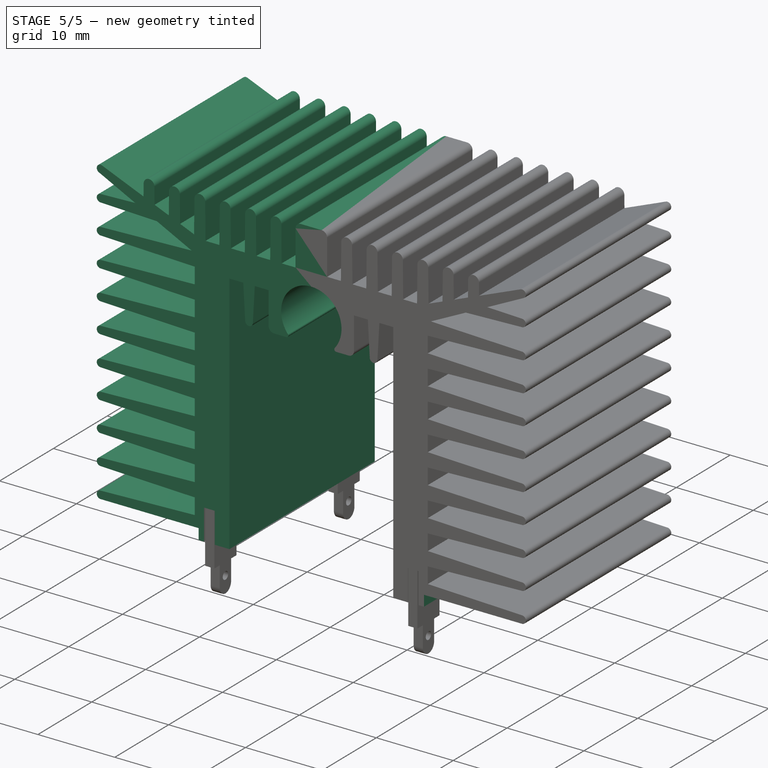
[diagram: stage 5 of 5 — iso view after this stage's code; geometry added in this stage tinted green]
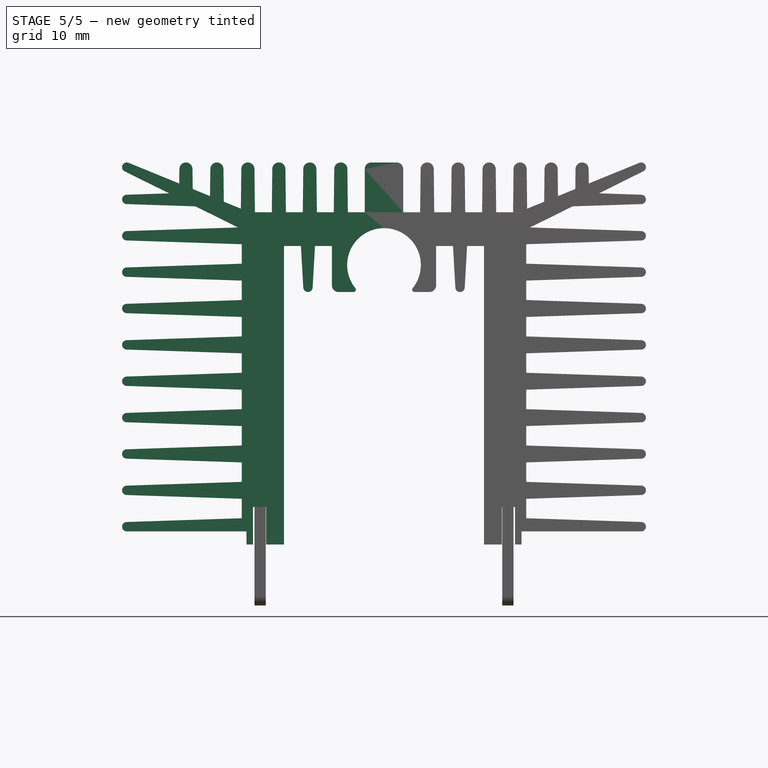
[diagram: stage 5 of 5 — front view after this stage's code; geometry added in this stage tinted green]
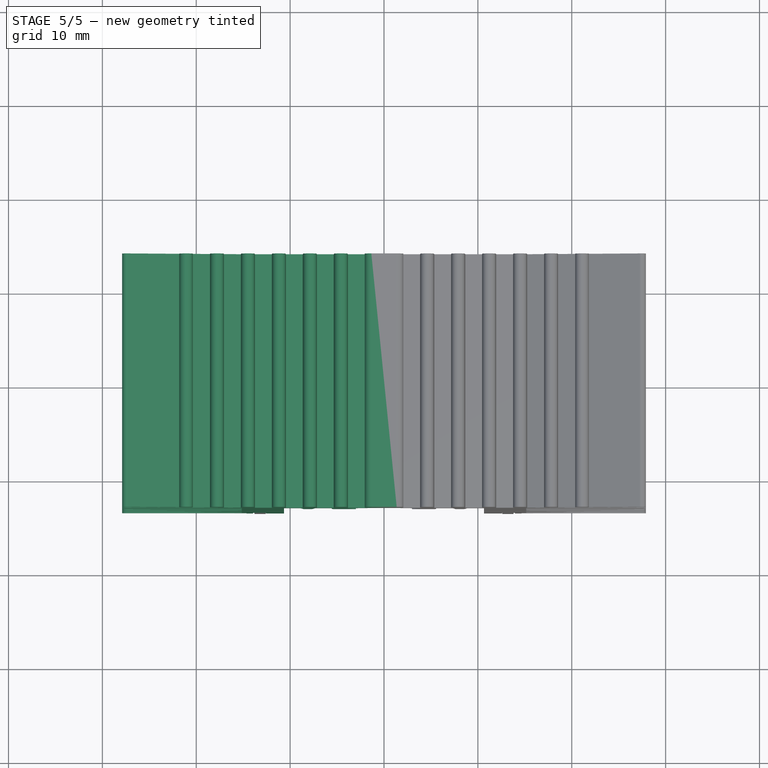
[diagram: stage 5 of 5 — top view after this stage's code; geometry added in this stage tinted green]
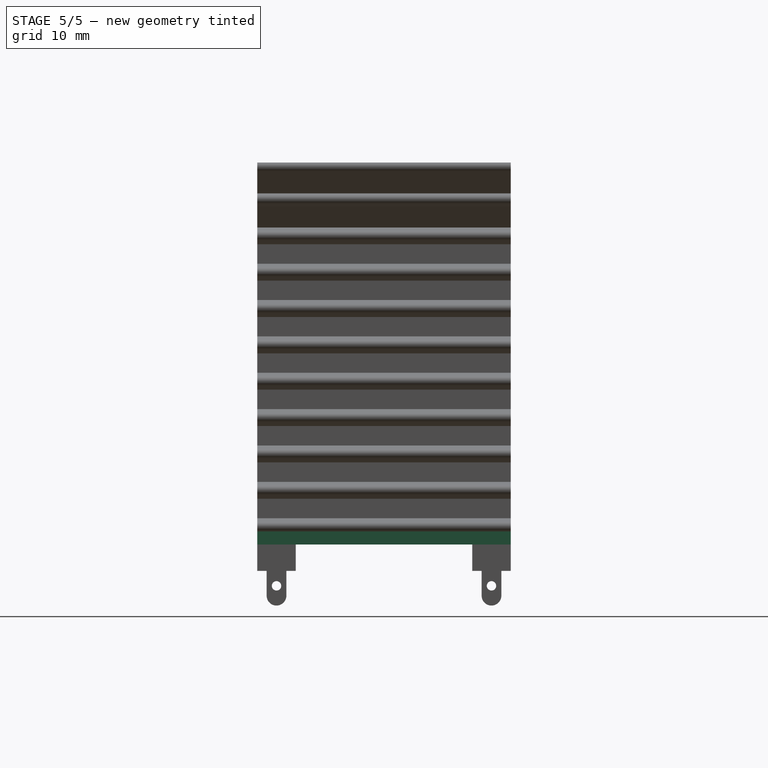
[diagram: stage 5 of 5 — right view after this stage's code; geometry added in this stage tinted green]
FEATURE [PartDesign::Fillet] Fillet001
  Base = -> Fillet [Edge183]
  BaseFeature = -> Fillet
  Placement = pos=(0,0,0) rot=(1,0,0;1.5708rad)
  Radius = 0.25
  SupportTransform = false
  Suppressed = false
  UseAllEdges = false
FEATURE [Sketcher::SketchObject] Sketch011
  ArcFitTolerance = 0
  AttachmentSupport = -> [XZ_Plane]
  ExternalGeometry = -> [Sketch,Sketch003]
  FullyConstrained = true
  MakeInternals = false
  MapMode = 5
  Placement = pos=(0,0,0) rot=(1,0,0;1.5708rad)
  sketch-geometry (4):
    g0: LineSegment StartX=27.4163 StartY=4.20027 StartZ=0 EndX=14.65 EndY=4.20027 EndZ=0
    g1: LineSegment StartX=14.65 StartY=4.20027 StartZ=0 EndX=14.65 EndY=2.8 EndZ=0
    g2: LineSegment StartX=14.65 StartY=2.8 StartZ=0 EndX=27.4163 EndY=2.8 EndZ=0
    g3: LineSegment StartX=27.4163 StartY=2.8 StartZ=0 EndX=27.4163 EndY=4.20027 EndZ=0
  constraints (11):
    c: Coincident(g0,g1)
    c: Coincident(g1,g2)
    c: Coincident(g2,g3)
    c: Coincident(g3,g0)
    c: Horizontal(g0)
    c: Horizontal(g2)
    c: Vertical(g1)
    c: Vertical(g3)
    c: Coincident(g0,g-4)
    c: PointOnObject(g-3,g2)
    c: DistanceX(g1,g-3) = 0.5
FEATURE [PartDesign::Pocket] Pocket004
  AllowMultiFace = false
  BaseFeature = -> Fillet001
  Direction = (0,1,-2e-16)
  Length = 5
  Length2 = 100
  Midplane = true
  Placement = pos=(0,0,0) rot=(1,0,0;1.5708rad)
  Profile = -> Sketch011
  Suppressed = false
  Type = 1
FEATURE [PartDesign::Body] Body
  AllowCompound = false
  Group = -> [Sketch,Sketch001,Pad,Sketch002,Pad001,Sketch003,Pad002,LinearPattern,Sketch004,Pocket,Sketch005,Pad003,LinearPattern001,Sketch006,Pocket001,Sketch007,Pad004,Sketch008,Pocket002,Fillet,Fillet001,Sketch011,Pocket004]
  Origin = -> Origin
  Tip = -> Pocket004
FEATURE [Part::Mirroring] Part__Mirroring  label="Body (Mirror #1)"
  Base = (0,0,0)
  Normal = (1,0,0)
  Source = -> Body
FEATURE [Part::MultiFuse] Fusion
  Refine = true
  Shapes = -> [Body,Part__Mirroring]
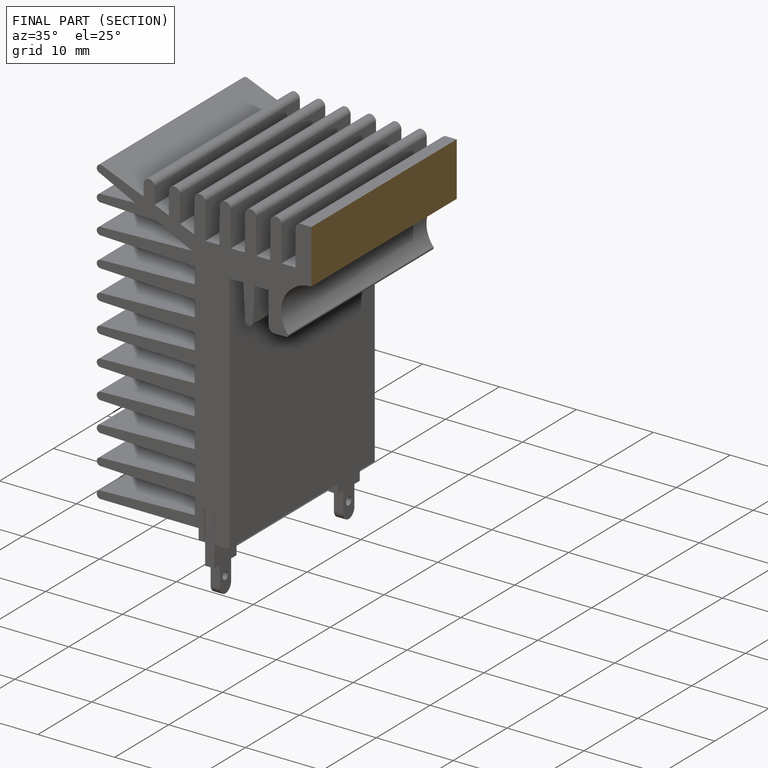
[diagram: finished part — half-section view (interior)]
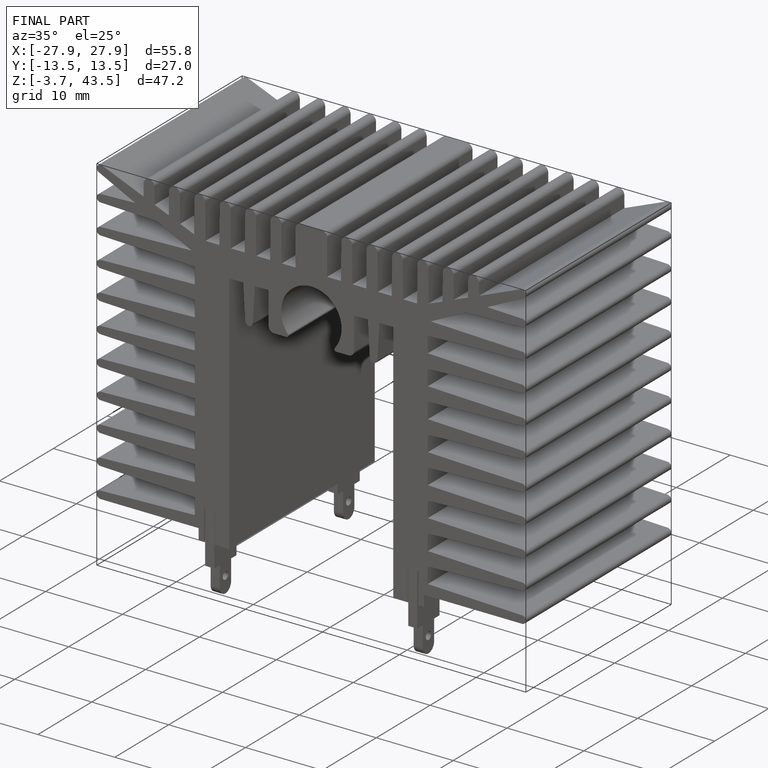
[diagram: finished part — iso view with bounding-box wireframe]
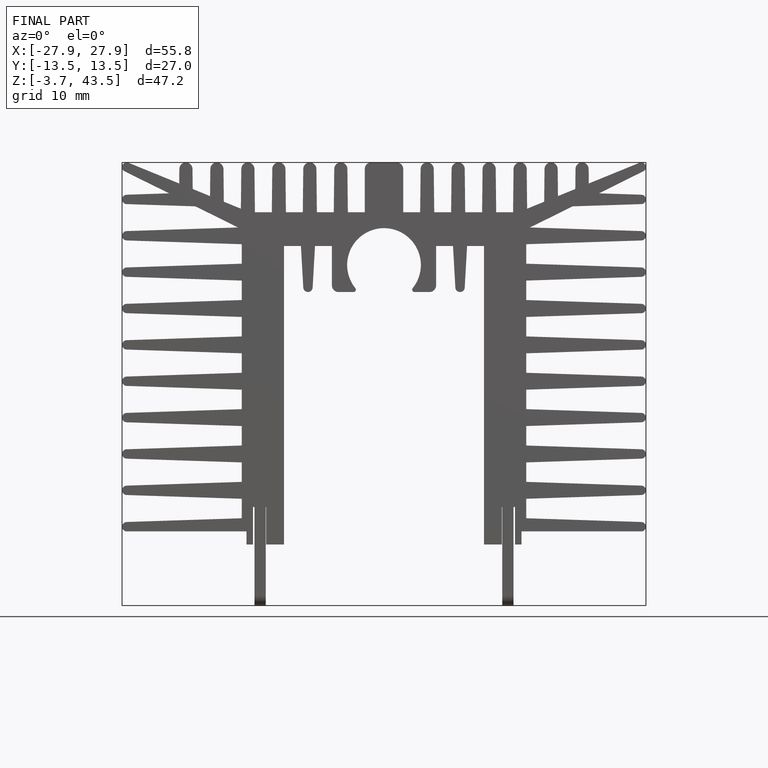
[diagram: finished part — front view with bounding-box wireframe]
